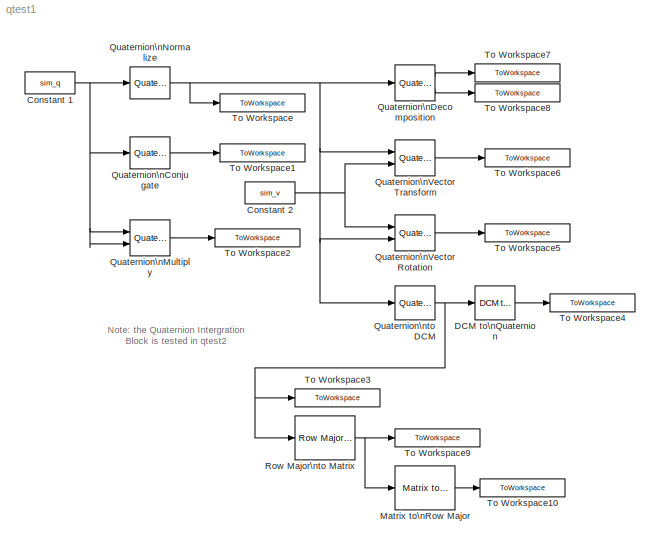
MODEL qtest1
KIND model
BLOCK [Constant] Constant 1
  Value = sim_q
BLOCK [Constant] Constant 2
  Value = sim_v
BLOCK [Reference] DCM to\nQuaternion  REF=qlib/DCM to\nQuaternion  (lib defined in mdl_ab4d631060dc, slx_f623738634e3)
  FunctionWithSeparateData = off
  Ports = [1, 1]
  RTWMemSecDataConstants = Inherit from model
  RTWMemSecDataInternal = Inherit from model
  RTWMemSecDataParameters = Inherit from model
  RTWMemSecFuncExecute = Inherit from model
  RTWMemSecFuncInitTerm = Inherit from model
  ShowPortLabels = FromPortIcon
  SourceBlock = qlib/DCM to\nQuaternion
  SourceType = DCM to Quaternion
  SystemSampleTime = -1
BLOCK [Reference] Matrix to\nRow Major  REF=qlib/Matrix to\nRow Major  (lib defined in mdl_ab4d631060dc, slx_f623738634e3)
  FunctionWithSeparateData = off
  Ports = [1, 1]
  RTWMemSecDataConstants = Inherit from model
  RTWMemSecDataInternal = Inherit from model
  RTWMemSecDataParameters = Inherit from model
  RTWMemSecFuncExecute = Inherit from model
  RTWMemSecFuncInitTerm = Inherit from model
  ShowPortLabels = FromPortIcon
  SourceBlock = qlib/Matrix to\nRow Major
  SourceType = Matrix to Row Major
  SystemSampleTime = -1
BLOCK [Reference] Quaternion\nConjugate  REF=qlib/Quaternion\nConjugate  (lib defined in mdl_ab4d631060dc, slx_f623738634e3)
  FunctionWithSeparateData = off
  Ports = [1, 1]
  RTWMemSecDataConstants = Inherit from model
  RTWMemSecDataInternal = Inherit from model
  RTWMemSecDataParameters = Inherit from model
  RTWMemSecFuncExecute = Inherit from model
  RTWMemSecFuncInitTerm = Inherit from model
  ShowPortLabels = FromPortIcon
  SourceBlock = qlib/Quaternion\nConjugate
  SourceType = Quaternion Conjugate
  SystemSampleTime = -1
BLOCK [Reference] Quaternion\nDecomposition  REF=qlib/Quaternion\nDecomposition  (lib defined in mdl_ab4d631060dc, slx_f623738634e3)
  FunctionWithSeparateData = off
  Ports = [1, 2]
  RTWMemSecDataConstants = Inherit from model
  RTWMemSecDataInternal = Inherit from model
  RTWMemSecDataParameters = Inherit from model
  RTWMemSecFuncExecute = Inherit from model
  RTWMemSecFuncInitTerm = Inherit from model
  ShowPortLabels = FromPortIcon
  SourceBlock = qlib/Quaternion\nDecomposition
  SourceType = Quaternion Decomposition
  SystemSampleTime = -1
BLOCK [Reference] Quaternion\nMultiply  REF=qlib/Quaternion\nMultiply  (lib defined in mdl_ab4d631060dc, slx_f623738634e3)
  FunctionWithSeparateData = off
  Ports = [2, 1]
  RTWMemSecDataConstants = Inherit from model
  RTWMemSecDataInternal = Inherit from model
  RTWMemSecDataParameters = Inherit from model
  RTWMemSecFuncExecute = Inherit from model
  RTWMemSecFuncInitTerm = Inherit from model
  ShowPortLabels = FromPortIcon
  SourceBlock = qlib/Quaternion\nMultiply
  SourceType = Quaternion Multiply
  SystemSampleTime = -1
BLOCK [Reference] Quaternion\nNormalize  REF=qlib/Quaternion\nNormalize  (lib defined in mdl_ab4d631060dc, slx_f623738634e3)
  FunctionWithSeparateData = off
  Ports = [1, 1]
  RTWMemSecDataConstants = Inherit from model
  RTWMemSecDataInternal = Inherit from model
  RTWMemSecDataParameters = Inherit from model
  RTWMemSecFuncExecute = Inherit from model
  RTWMemSecFuncInitTerm = Inherit from model
  ShowPortLabels = FromPortIcon
  SourceBlock = qlib/Quaternion\nNormalize
  SourceType = Quaternion Normalize
  SystemSampleTime = -1
BLOCK [Reference] Quaternion\nVector Rotation  REF=qlib/Quaternion\nVector Rotation  (lib defined in mdl_ab4d631060dc, slx_f623738634e3)
  FunctionWithSeparateData = off
  Ports = [2, 1]
  RTWMemSecDataConstants = Inherit from model
  RTWMemSecDataInternal = Inherit from model
  RTWMemSecDataParameters = Inherit from model
  RTWMemSecFuncExecute = Inherit from model
  RTWMemSecFuncInitTerm = Inherit from model
  ShowPortLabels = FromPortIcon
  SourceBlock = qlib/Quaternion\nVector Rotation
  SourceType = Quaternion Vector Rotation
  SystemSampleTime = -1
BLOCK [Reference] Quaternion\nVector Transform  REF=qlib/Quaternion\nVector Transform  (lib defined in mdl_ab4d631060dc, slx_f623738634e3)
  FunctionWithSeparateData = off
  Ports = [2, 1]
  RTWMemSecDataConstants = Inherit from model
  RTWMemSecDataInternal = Inherit from model
  RTWMemSecDataParameters = Inherit from model
  RTWMemSecFuncExecute = Inherit from model
  RTWMemSecFuncInitTerm = Inherit from model
  ShowPortLabels = FromPortIcon
  SourceBlock = qlib/Quaternion\nVector Transform
  SourceType = Quaternion Vector Transform
  SystemSampleTime = -1
BLOCK [Reference] Quaternion\nto DCM  REF=qlib/Quaternion\nto DCM  (lib defined in mdl_ab4d631060dc, slx_f623738634e3)
  FunctionWithSeparateData = off
  Ports = [1, 1]
  RTWMemSecDataConstants = Inherit from model
  RTWMemSecDataInternal = Inherit from model
  RTWMemSecDataParameters = Inherit from model
  RTWMemSecFuncExecute = Inherit from model
  RTWMemSecFuncInitTerm = Inherit from model
  ShowPortLabels = FromPortIcon
  SourceBlock = qlib/Quaternion\nto DCM
  SourceType = Quaternion to DCM
  SystemSampleTime = -1
BLOCK [Reference] Row Major\nto Matrix  REF=qlib/Row Major\nto Matrix  (lib defined in mdl_ab4d631060dc, slx_f623738634e3)
  FunctionWithSeparateData = off
  Ports = [1, 1]
  RTWMemSecDataConstants = Inherit from model
  RTWMemSecDataInternal = Inherit from model
  RTWMemSecDataParameters = Inherit from model
  RTWMemSecFuncExecute = Inherit from model
  RTWMemSecFuncInitTerm = Inherit from model
  ShowPortLabels = FromPortIcon
  SourceBlock = qlib/Row Major\nto Matrix
  SourceType = Row Major to Matrix
  SystemSampleTime = -1
  columns = 3
  rows = 3
BLOCK [ToWorkspace] To Workspace
  MaxDataPoints = 1
  SampleTime = -1
  SaveFormat = Array
  VariableName = sim_qnorm
BLOCK [ToWorkspace] To Workspace1
  MaxDataPoints = 1
  SampleTime = -1
  SaveFormat = Array
  VariableName = sim_qconj
BLOCK [ToWorkspace] To Workspace10
  MaxDataPoints = 1
  SampleTime = -1
  SaveFormat = Array
  VariableName = sim_mat2rm
BLOCK [ToWorkspace] To Workspace2
  MaxDataPoints = 1
  SampleTime = -1
  SaveFormat = Array
  VariableName = sim_qmult
BLOCK [ToWorkspace] To Workspace3
  MaxDataPoints = 1
  SampleTime = -1
  SaveFormat = Array
  VariableName = sim_q2dcm
BLOCK [ToWorkspace] To Workspace4
  MaxDataPoints = 1
  SampleTime = -1
  SaveFormat = Array
  VariableName = sim_dcm2q
BLOCK [ToWorkspace] To Workspace5
  MaxDataPoints = 1
  SampleTime = -1
  SaveFormat = Array
  VariableName = sim_qvrot
BLOCK [ToWorkspace] To Workspace6
  MaxDataPoints = 1
  SampleTime = -1
  SaveFormat = Array
  VariableName = sim_qvxform
BLOCK [ToWorkspace] To Workspace7
  MaxDataPoints = 1
  SampleTime = -1
  SaveFormat = Array
  VariableName = sim_vector
BLOCK [ToWorkspace] To Workspace8
  MaxDataPoints = 1
  SampleTime = -1
  SaveFormat = Array
  VariableName = sim_phi
BLOCK [ToWorkspace] To Workspace9
  MaxDataPoints = 1
  SampleTime = -1
  SaveFormat = Array
  VariableName = sim_rm2mat
ANNOTATION (root): Note: the Quaternion Intergration\nBlock is tested in qtest2
NET Constant 1:1 -> Quaternion\nConjugate:1, Quaternion\nMultiply:1, Quaternion\nMultiply:2, Quaternion\nNormalize:1
NET Constant 2:1 -> Quaternion\nVector Rotation:1, Quaternion\nVector Transform:2
LINE DCM to\nQuaternion:1 -> To Workspace4:1
LINE Matrix to\nRow Major:1 -> To Workspace10:1
LINE Quaternion\nConjugate:1 -> To Workspace1:1
LINE Quaternion\nDecomposition:1 -> To Workspace7:1
LINE Quaternion\nDecomposition:2 -> To Workspace8:1
LINE Quaternion\nMultiply:1 -> To Workspace2:1
NET Quaternion\nNormalize:1 -> Quaternion\nDecomposition:1, Quaternion\nVector Rotation:2, Quaternion\nVector Transform:1, Quaternion\nto DCM:1, To Workspace:1
LINE Quaternion\nVector Rotation:1 -> To Workspace5:1
LINE Quaternion\nVector Transform:1 -> To Workspace6:1
NET Quaternion\nto DCM:1 -> DCM to\nQuaternion:1, Row Major\nto Matrix:1, To Workspace3:1
NET Row Major\nto Matrix:1 -> Matrix to\nRow Major:1, To Workspace9:1
note: NET lines group one-source signal fan-out (src -> all destinations, sorted); 1:1 wires keep LINE
